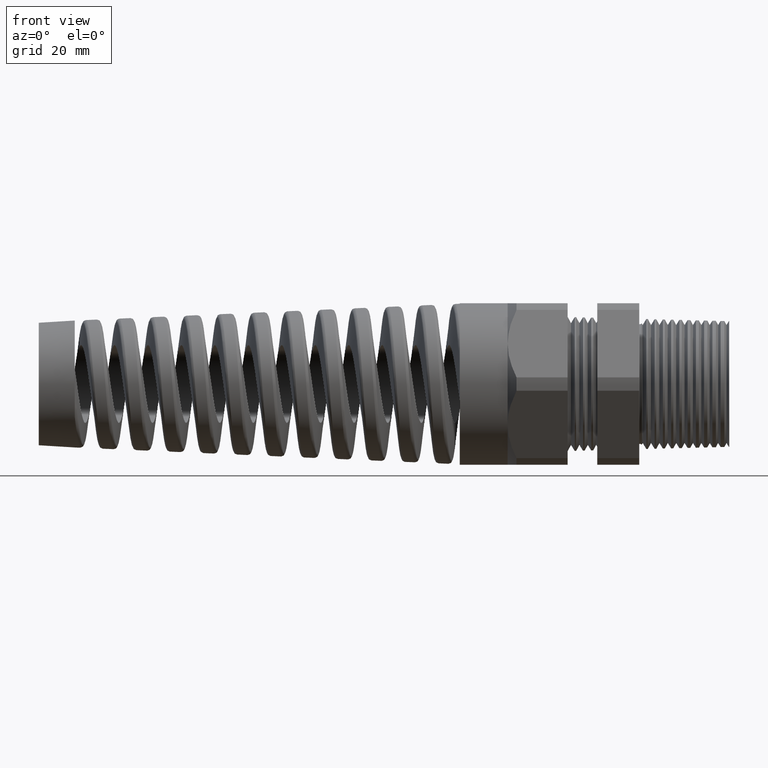
[diagram: clean part render]
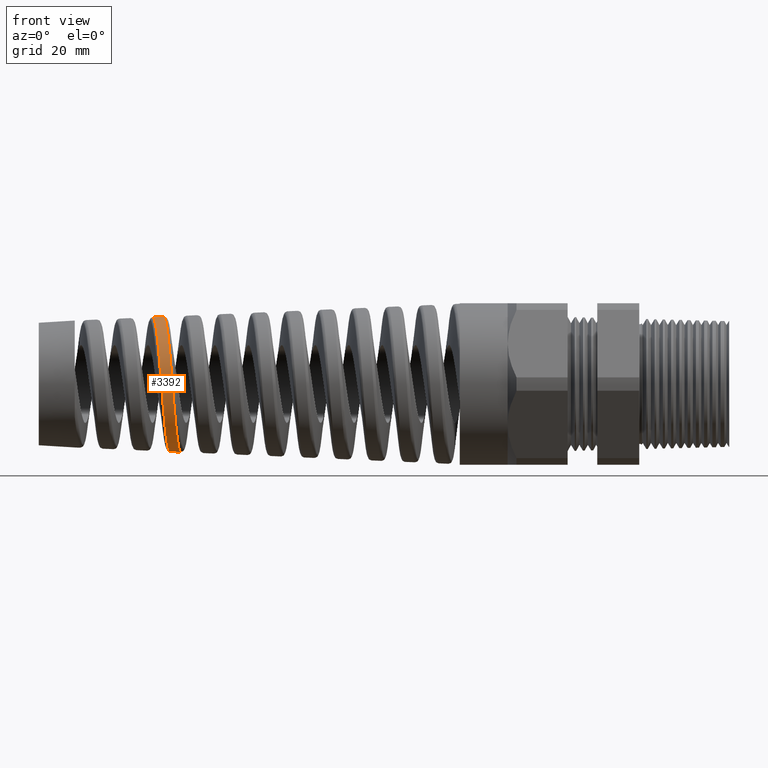
[diagram: same view with one face highlighted and labeled with its STEP entity id]
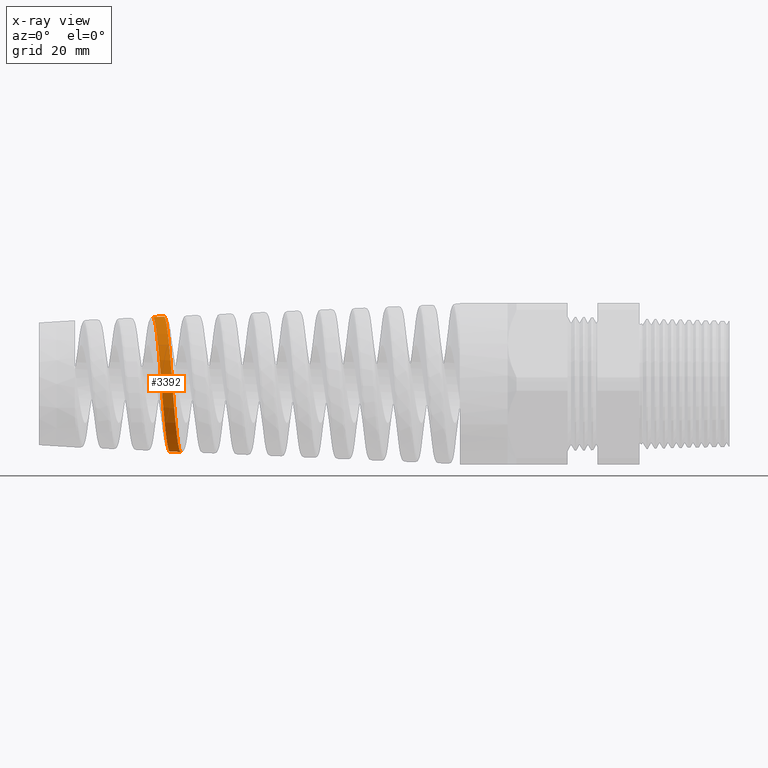
[diagram: x-ray of the same camera — body ghosted, the highlighted face saturated]
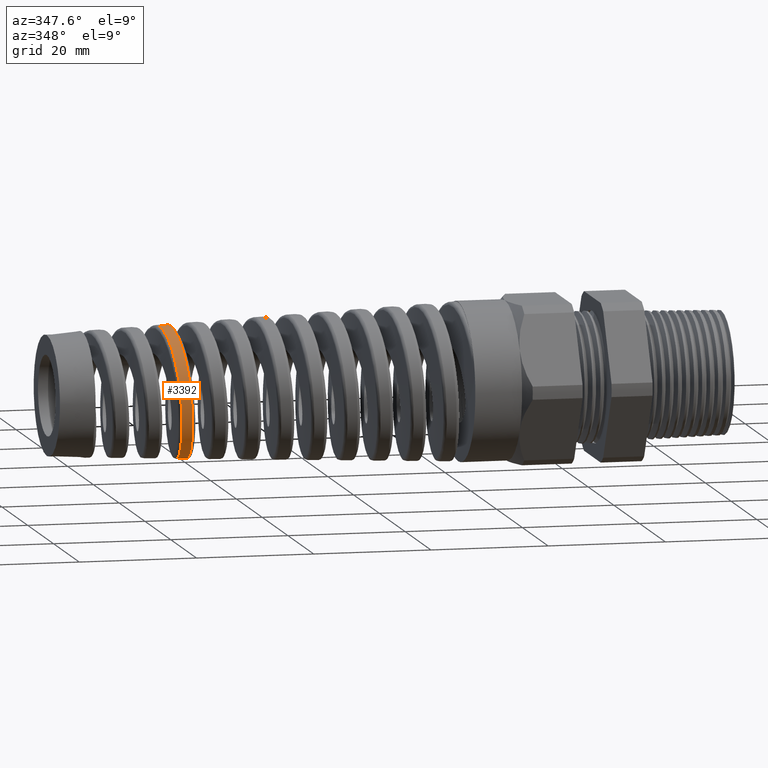
[diagram: same view with one face highlighted and labeled with its STEP entity id]
A machine part, front view. The second image highlights one B-rep face of the part: STEP entity #3392.
The next image is the same camera in x-ray: the body ghosted, the highlighted face saturated — about 0% of this face is hidden behind the body in this view.
A second angle (auxiliary view) of the same face is appended — the face is thin or edge-on in the first view.
In plain terms, the highlighted conical surface has half-angle 2.5 deg.
Its self-contained STEP definition (entity closure, byte-faithful):
#701 = FACE_OUTER_BOUND ( 'NONE', #3393, .T. ) ;
#703 = DIRECTION ( 'NONE',  ( 0.0000000000000000000, 0.0000000000000000000, -1.000000000000000000 ) ) ;
#704 = DIRECTION ( 'NONE',  ( 1.000000000000000000, 0.0000000000000000000, 0.0000000000000000000 ) ) ;
#705 = CARTESIAN_POINT ( 'NONE',  ( -1.409999999999999900, 0.0000000000000000000, 0.0000000000000000000 ) ) ;
#706 = AXIS2_PLACEMENT_3D ( 'NONE', #705, #704, #703 ) ;
#707 = CONICAL_SURFACE ( 'NONE', #706, 0.5300000000000000300, 0.04363323129985853500 ) ;
#708 = CARTESIAN_POINT ( 'NONE',  ( -3.337187002505813900, -0.2222353234101158700, -0.3876352316715328500 ) ) ;
#709 = CARTESIAN_POINT ( 'NONE',  ( -3.334920340323289000, -0.1966110625010617000, -0.4013216965527127700 ) ) ;
#731 = CARTESIAN_POINT ( 'NONE',  ( -3.454203624433690200, -0.4264113560600108500, 0.1124418513500344600 ) ) ;
#732 = CARTESIAN_POINT ( 'NONE',  ( -3.456511535139972700, -0.4179884202311931500, 0.1402379433451270100 ) ) ;
#733 = CARTESIAN_POINT ( 'NONE',  ( -3.457657010171558900, -0.4131219861305591700, 0.1538284592717316700 ) ) ;
#734 = CARTESIAN_POINT ( 'NONE',  ( -3.461087408046601900, -0.3966125846849881100, 0.1937014944091947600 ) ) ;
#735 = CARTESIAN_POINT ( 'NONE',  ( -3.463366535263609200, -0.3830777514630255300, 0.2190940625454935500 ) ) ;
#736 = CARTESIAN_POINT ( 'NONE',  ( -3.466842456455288000, -0.3588677948676385300, 0.2553385789380904200 ) ) ;
#737 = CARTESIAN_POINT ( 'NONE',  ( -3.468004561805866800, -0.3501777045497289600, 0.2670427977740304500 ) ) ;
#738 = CARTESIAN_POINT ( 'NONE',  ( -3.470307703424622100, -0.3318603107242288400, 0.2893380464985502200 ) ) ;
#739 = CARTESIAN_POINT ( 'NONE',  ( -3.471454192596231400, -0.3221951775579667300, 0.2999872026484285400 ) ) ;
#740 = CARTESIAN_POINT ( 'NONE',  ( -3.473744765677818000, -0.3018643385781352200, 0.3202998263298171800 ) ) ;
#741 = CARTESIAN_POINT ( 'NONE',  ( -3.474889456675229300, -0.2911986558009541600, 0.3299632482924888500 ) ) ;
#742 = CARTESIAN_POINT ( 'NONE',  ( -3.477190471064154600, -0.2688502693243624000, 0.3482866169788225200 ) ) ;
#743 = CARTESIAN_POINT ( 'NONE',  ( -3.478353275580403600, -0.2570980402939922500, 0.3569892715824111200 ) ) ;
#744 = CARTESIAN_POINT ( 'NONE',  ( -3.481817615699809700, -0.2209049491464011900, 0.3811026275018185600 ) ) ;
#745 = CARTESIAN_POINT ( 'NONE',  ( -3.484100441370022100, -0.1955158680062407100, 0.3946045204785640900 ) ) ;
#746 = CARTESIAN_POINT ( 'NONE',  ( -3.488703220184020900, -0.1422728047383447200, 0.4165585785005432900 ) ) ;
#747 = CARTESIAN_POINT ( 'NONE',  ( -3.491044720775303500, -0.1141333678789983200, 0.4250269951766808600 ) ) ;
#748 = CARTESIAN_POINT ( 'NONE',  ( -3.495647700890383500, -0.05756093770883868200, 0.4361016429154485600 ) ) ;
#749 = CARTESIAN_POINT ( 'NONE',  ( -3.497928242903181500, -0.02894534387349073000, 0.4388390841895895600 ) ) ;
#750 = CARTESIAN_POINT ( 'NONE',  ( -3.500238947693277600, 8.472193896010281000E-013, 0.4387381966396148900 ) ) ;
#751 = B_SPLINE_CURVE_WITH_KNOTS ( 'NONE', 3,
 ( #750, #749, #748, #747, #746, #745, #744, #743, #742, #741, #740, #739, #738, #737, #736, #735, #734, #733, #732, #731, #781, #780, #779, #778, #777, #776, #775, #774, #773, #772, #771, #770, #769, #768, #767, #766, #765, #764, #763, #762, #761, #760, #759, #758, #757, #756, #755 ),
 .UNSPECIFIED., .F., .F.,
 ( 4, 2, 2, 2, 2, 2, 2, 2, 2, 2, 2, 2, 2, 2, 2, 2, 1, 2, 2, 2, 2, 2, 2, 4 ),
 ( 0.1610623353216538700, 0.1632910774337315900, 0.1655198195458093300, 0.1677485616578870400, 0.1688629327139259100, 0.1699773037699647800, 0.1710916748260036500, 0.1722060458820425000, 0.1744347879941202400, 0.1755491590501591100, 0.1766635301061979500, 0.1788922722182756900, 0.1800066432743145400, 0.1811210143303534100, 0.1833497564424311200, 0.1844641274984699900, 0.1855784985545088600, 0.1866928696105477300, 0.1878072406665865800, 0.1900359827786643200, 0.1922647248907420300, 0.1944934670028197800, 0.1956078380588586200, 0.1967222091148974900 ),
 .UNSPECIFIED. ) ;
#753 = CARTESIAN_POINT ( 'NONE',  ( -3.344066508830200400, -0.2934027000493260000, -0.3365622445053121400 ) ) ;
#754 = CARTESIAN_POINT ( 'NONE',  ( -3.341797805881114000, -0.2710084899603786300, -0.3549993491136386200 ) ) ;
#755 = CARTESIAN_POINT ( 'NONE',  ( -3.390079976267699600, 1.789123259466410800E-016, -0.4435478412018874500 ) ) ;
#756 = CARTESIAN_POINT ( 'NONE',  ( -3.391217115636582700, -0.01437193126521235700, -0.4434981926248237600 ) ) ;
#757 = CARTESIAN_POINT ( 'NONE',  ( -3.392353906859422600, -0.02875640524613412600, -0.4427517177825864800 ) ) ;
#758 = CARTESIAN_POINT ( 'NONE',  ( -3.394640011524962600, -0.05754991495653438000, -0.4398357732163816200 ) ) ;
#759 = CARTESIAN_POINT ( 'NONE',  ( -3.395794288503961600, -0.07202061319360526800, -0.4376482078881247000 ) ) ;
#760 = CARTESIAN_POINT ( 'NONE',  ( -3.399224407209123600, -0.1145842729711316100, -0.4290560569159579400 ) ) ;
#761 = CARTESIAN_POINT ( 'NONE',  ( -3.401486660488955300, -0.1420713744242320100, -0.4206414153071554900 ) ) ;
#762 = CARTESIAN_POINT ( 'NONE',  ( -3.406053245422732800, -0.1952843907503599200, -0.3985107908154707500 ) ) ;
#763 = CARTESIAN_POINT ( 'NONE',  ( -3.408375889016579000, -0.2211813405377419400, -0.3846234049987212700 ) ) ;
#764 = CARTESIAN_POINT ( 'NONE',  ( -3.412942451071685900, -0.2690401096825147900, -0.3525581615133834800 ) ) ;
#765 = CARTESIAN_POINT ( 'NONE',  ( -3.415205165356529200, -0.2912634434056656200, -0.3343167120376607800 ) ) ;
#766 = CARTESIAN_POINT ( 'NONE',  ( -3.418645034652672400, -0.3219877712659466300, -0.3035845478079937700 ) ) ;
#767 = CARTESIAN_POINT ( 'NONE',  ( -3.419802358512793900, -0.3318098450729415300, -0.2927396209757324700 ) ) ;
#768 = CARTESIAN_POINT ( 'NONE',  ( -3.422094595354138800, -0.3501460455871992000, -0.2703765779143788000 ) ) ;
#769 = CARTESIAN_POINT ( 'NONE',  ( -3.424376359620838500, -0.3672872459687527800, -0.2472390960404910200 ) ) ;
#770 = CARTESIAN_POINT ( 'NONE',  ( -3.426658961935719300, -0.3820805897346116200, -0.2225820831481016800 ) ) ;
#771 = CARTESIAN_POINT ( 'NONE',  ( -3.428951304271479600, -0.3956874924124246800, -0.1971580917411988600 ) ) ;
#772 = CARTESIAN_POINT ( 'NONE',  ( -3.430106286814286000, -0.4019165630389838800, -0.1840166460273845500 ) ) ;
#773 = CARTESIAN_POINT ( 'NONE',  ( -3.433571876736046600, -0.4186275171242010400, -0.1437050095232147700 ) ) ;
#774 = CARTESIAN_POINT ( 'NONE',  ( -3.435841802544003600, -0.4269682390687264400, -0.1161530042250227400 ) ) ;
#775 = CARTESIAN_POINT ( 'NONE',  ( -3.439263763555902000, -0.4354165754935071000, -0.07384802501466576600 ) ) ;
#776 = CARTESIAN_POINT ( 'NONE',  ( -3.440407098221149400, -0.4375506822743812100, -0.05958234784576160000 ) ) ;
#777 = CARTESIAN_POINT ( 'NONE',  ( -3.442711384074859500, -0.4404184787234325900, -0.03071519646347605600 ) ) ;
#778 = CARTESIAN_POINT ( 'NONE',  ( -3.443871962698770200, -0.4411412252862412800, -0.01611840141822158300 ) ) ;
#779 = CARTESIAN_POINT ( 'NONE',  ( -3.447320118100383600, -0.4411551615668978200, 0.02721300070515084500 ) ) ;
#780 = CARTESIAN_POINT ( 'NONE',  ( -3.449600887676689300, -0.4383536453962174600, 0.05581490508473967200 ) ) ;
#781 = CARTESIAN_POINT ( 'NONE',  ( -3.453045511042575300, -0.4299437549664734700, 0.09828603740144158100 ) ) ;
#783 = CARTESIAN_POINT ( 'NONE',  ( -3.347474478899946900, -0.3241169557400184800, -0.3058530990773281600 ) ) ;
#784 = CARTESIAN_POINT ( 'NONE',  ( -3.352052597372554600, -0.3611728105034747700, -0.2607231330321136400 ) ) ;
#785 = CARTESIAN_POINT ( 'NONE',  ( -3.348611386815751000, -0.3338720172697201600, -0.2951040838987574700 ) ) ;
#786 = CARTESIAN_POINT ( 'NONE',  ( -3.350898952256594800, -0.3523926076136634800, -0.2725572269585251300 ) ) ;
#787 = CARTESIAN_POINT ( 'NONE',  ( -3.355478642809090600, -0.3854468887887342900, -0.2244015008133210000 ) ) ;
#788 = CARTESIAN_POINT ( 'NONE',  ( -3.361172101679342500, -0.4158103713088797100, -0.1586459101635379900 ) ) ;
#789 = CARTESIAN_POINT ( 'NONE',  ( -3.362324271860383600, -0.4207629542405830800, -0.1448595353191592400 ) ) ;
#790 = CARTESIAN_POINT ( 'NONE',  ( -3.357742376907989300, -0.3990995518454824000, -0.1988772824053102200 ) ) ;
#791 = CARTESIAN_POINT ( 'NONE',  ( -3.365773497762324600, -0.4328248563222737400, -0.1027131979271271000 ) ) ;
#792 = CARTESIAN_POINT ( 'NONE',  ( -3.364630069164916900, -0.4292865738851442400, -0.1168299850866659600 ) ) ;
#816 = CARTESIAN_POINT ( 'NONE',  ( -3.376055357803462900, -0.4435600454921548900, 0.02728218009594369400 ) ) ;
#817 = CARTESIAN_POINT ( 'NONE',  ( -3.374899566116745600, -0.4442726693908312700, 0.01258212257661577500 ) ) ;
#818 = CARTESIAN_POINT ( 'NONE',  ( -3.371455269149945500, -0.4442230642314419800, -0.03124571471192238300 ) ) ;
#819 = CARTESIAN_POINT ( 'NONE',  ( -3.380629688261075600, -0.4364850612489036800, 0.08490530332576662300 ) ) ;
#820 = CARTESIAN_POINT ( 'NONE',  ( -3.378346353927602400, -0.4407250769046133200, 0.05623514769994523300 ) ) ;
#834 = CARTESIAN_POINT ( 'NONE',  ( -3.369192194085295400, -0.4413353759104036700, -0.06006741399991978600 ) ) ;
#873 = CARTESIAN_POINT ( 'NONE',  ( -3.382912841784853100, -0.4294773365427091400, 0.1130171617152891000 ) ) ;
#947 = CARTESIAN_POINT ( 'NONE',  ( -3.392085725594762300, -0.3856888172224811100, 0.2207737353871427300 ) ) ;
#948 = CARTESIAN_POINT ( 'NONE',  ( -3.389817625327842700, -0.3993581075798926000, 0.1952264195729466200 ) ) ;
#950 = CARTESIAN_POINT ( 'NONE',  ( -3.386362129215896300, -0.4161300973402417000, 0.1546877644417744300 ) ) ;
#951 = CARTESIAN_POINT ( 'NONE',  ( -3.385205273671128900, -0.4210669932662203800, 0.1408453294596362900 ) ) ;
#960 = CARTESIAN_POINT ( 'NONE',  ( -3.331521752546157800, -0.1565149358253722600, -0.4179974542012955300 ) ) ;
#961 = CARTESIAN_POINT ( 'NONE',  ( -3.330388151465934600, -0.1428645339421983100, -0.4229132824927437900 ) ) ;
#962 = CARTESIAN_POINT ( 'NONE',  ( -3.328106967372912900, -0.1149826988854234500, -0.4314322439543679100 ) ) ;
#963 = CARTESIAN_POINT ( 'NONE',  ( -3.326954759784455500, -0.1006920409990841900, -0.4350410373736888800 ) ) ;
#964 = CARTESIAN_POINT ( 'NONE',  ( -3.323530843583471000, -0.05782839354756064800, -0.4436508318582564900 ) ) ;
#965 = CARTESIAN_POINT ( 'NONE',  ( -3.321270870056650900, -0.02902502091142466000, -0.4465521116597868700 ) ) ;
#966 = CARTESIAN_POINT ( 'NONE',  ( -3.318995017384299000, 5.086010051436246700E-013, -0.4466514775333496100 ) ) ;
#967 = B_SPLINE_CURVE_WITH_KNOTS ( 'NONE', 3,
 ( #966, #965, #964, #963, #962, #961, #960, #709, #708, #754, #753, #783, #785, #786, #784, #787, #790, #788, #789, #792, #791, #834, #818, #817, #816, #820, #819, #873, #951, #950, #948, #947, #11912, #11911, #11910, #11909, #11436, #11692, #11773, #11824, #11898, #11896, #11897, #11899, #11901, #11900, #11902 ),
 .UNSPECIFIED., .F., .F.,
 ( 4, 2, 2, 2, 2, 2, 2, 2, 2, 2, 2, 2, 2, 1, 2, 2, 2, 2, 2, 2, 2, 2, 2, 4 ),
 ( 0.6544149622600832200, 0.6566543100716657500, 0.6577739839774571200, 0.6588936578832483800, 0.6611330056948309100, 0.6633723535064135500, 0.6644920274122048100, 0.6656117013179960700, 0.6678510491295786000, 0.6689707230353699700, 0.6700903969411612400, 0.6723297447527437600, 0.6734494186585350300, 0.6745690925643264000, 0.6756887664701176600, 0.6768084403759089300, 0.6790477881874914500, 0.6801674620932828300, 0.6812871359990740900, 0.6835264838106566200, 0.6846461577164478800, 0.6857658316222391400, 0.6880051794338217800, 0.6902445272454043000 ),
 .UNSPECIFIED. ) ;
#1610 = CARTESIAN_POINT ( 'NONE',  ( -3.500238947693277600, 8.472193896010281000E-013, 0.4387381966396148900 ) ) ;
#1613 = DIRECTION ( 'NONE',  ( 0.9990482215818576900, 5.341834311772759500E-018, 0.04361938736533629800 ) ) ;
#1614 = VECTOR ( 'NONE', #1613, 39.37007874015748100 ) ;
#1615 = CARTESIAN_POINT ( 'NONE',  ( -1.409999999999999900, 6.490628035480972400E-017, 0.5300000000000000300 ) ) ;
#1616 = LINE ( 'NONE', #1615, #1614 ) ;
#1919 = DIRECTION ( 'NONE',  ( 0.9990482215818576900, 0.0000000000000000000, -0.04361938736533629800 ) ) ;
#1920 = VECTOR ( 'NONE', #1919, 39.37007874015748100 ) ;
#1921 = CARTESIAN_POINT ( 'NONE',  ( -1.409999999999999900, 0.0000000000000000000, -0.5300000000000000300 ) ) ;
#1922 = LINE ( 'NONE', #1921, #1920 ) ;
#2023 = CARTESIAN_POINT ( 'NONE',  ( -3.318995017384299000, 5.086010051436246700E-013, -0.4466514775333496100 ) ) ;
#2074 = CARTESIAN_POINT ( 'NONE',  ( -3.390079976267699600, 1.789123259466410800E-016, -0.4435478412018874500 ) ) ;
#2080 = CARTESIAN_POINT ( 'NONE',  ( -3.428835952976158300, -1.404358659484424000E-015, 0.4418557187154558100 ) ) ;
#3247 = EDGE_CURVE ( 'NONE', #3250, #3282, #1616, .T. ) ;
#3250 = VERTEX_POINT ( 'NONE', #1610 ) ;
#3282 = VERTEX_POINT ( 'NONE', #2080 ) ;
#3285 = VERTEX_POINT ( 'NONE', #2074 ) ;
#3289 = VERTEX_POINT ( 'NONE', #2023 ) ;
#3291 = EDGE_CURVE ( 'NONE', #3285, #3289, #1922, .T. ) ;
#3392 = ADVANCED_FACE ( 'NONE', ( #701 ), #707, .T. ) ;
#3393 = EDGE_LOOP ( 'NONE', ( #3394, #3395, #3401, #3402 ) ) ;
#3394 = ORIENTED_EDGE ( 'NONE', *, *, #3247, .F. ) ;
#3395 = ORIENTED_EDGE ( 'NONE', *, *, #3396, .T. ) ;
#3396 = EDGE_CURVE ( 'NONE', #3250, #3285, #751, .T. ) ;
#3401 = ORIENTED_EDGE ( 'NONE', *, *, #3291, .T. ) ;
#3402 = ORIENTED_EDGE ( 'NONE', *, *, #3403, .T. ) ;
#3403 = EDGE_CURVE ( 'NONE', #3289, #3282, #967, .T. ) ;
#11436 = CARTESIAN_POINT ( 'NONE',  ( -3.403568405589212400, -0.2936342693166586500, 0.3329202185189507100 ) ) ;
#11692 = CARTESIAN_POINT ( 'NONE',  ( -3.405844794288143800, -0.2712529249764236700, 0.3512744324932163300 ) ) ;
#11773 = CARTESIAN_POINT ( 'NONE',  ( -3.409290453254357100, -0.2349344954194820500, 0.3755115866833325700 ) ) ;
#11824 = CARTESIAN_POINT ( 'NONE',  ( -3.410450794408066000, -0.2222937988695720400, 0.3830731630080962400 ) ) ;
#11896 = CARTESIAN_POINT ( 'NONE',  ( -3.413897152422831600, -0.1833860926939447100, 0.4029795227478742400 ) ) ;
#11897 = CARTESIAN_POINT ( 'NONE',  ( -3.417325489698903200, -0.1432239216661724800, 0.4195311553919777200 ) ) ;
#11898 = CARTESIAN_POINT ( 'NONE',  ( -3.412753369810687300, -0.1965251872995599200, 0.3967977304354358100 ) ) ;
#11899 = CARTESIAN_POINT ( 'NONE',  ( -3.419609575904291700, -0.1154633981896628400, 0.4279265955717316300 ) ) ;
#11900 = CARTESIAN_POINT ( 'NONE',  ( -3.426546973802207000, -0.02895069536185292500, 0.4419556577044885200 ) ) ;
#11901 = CARTESIAN_POINT ( 'NONE',  ( -3.424256187059586700, -0.05789878940611035300, 0.4392280638579643100 ) ) ;
#11902 = CARTESIAN_POINT ( 'NONE',  ( -3.428835952976158300, -1.404358659484424000E-015, 0.4418557187154558100 ) ) ;
#11909 = CARTESIAN_POINT ( 'NONE',  ( -3.400122926034626800, -0.3244721950425512000, 0.3021171684860252700 ) ) ;
#11910 = CARTESIAN_POINT ( 'NONE',  ( -3.398964124216613800, -0.3343350642622190900, 0.2912472686212990200 ) ) ;
#11911 = CARTESIAN_POINT ( 'NONE',  ( -3.396653902648065300, -0.3528994941492100100, 0.2686191799215163500 ) ) ;
#11912 = CARTESIAN_POINT ( 'NONE',  ( -3.395509257552143700, -0.3615539443930272400, 0.2569303002246841100 ) ) ;